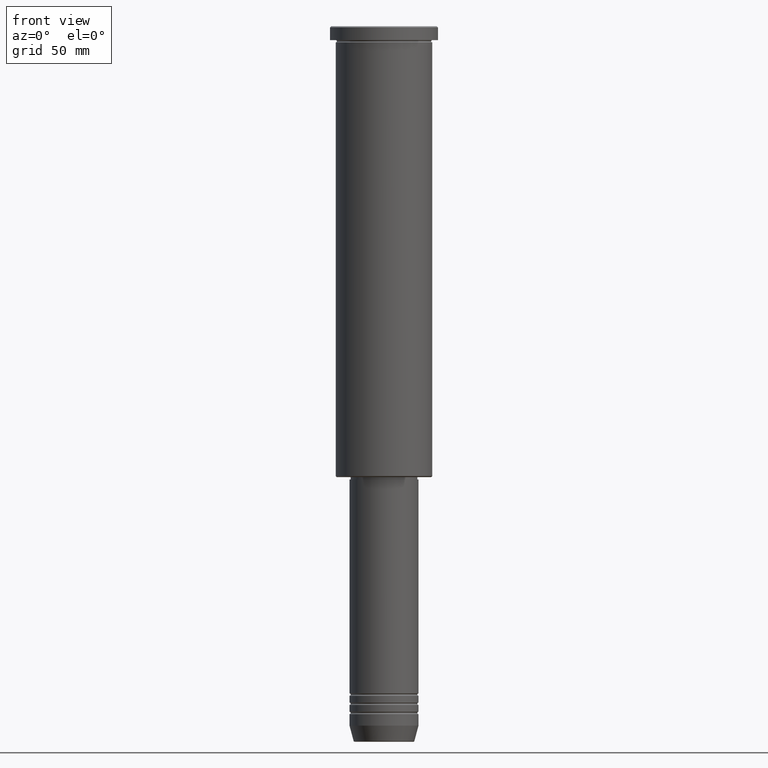
[diagram: clean part render]
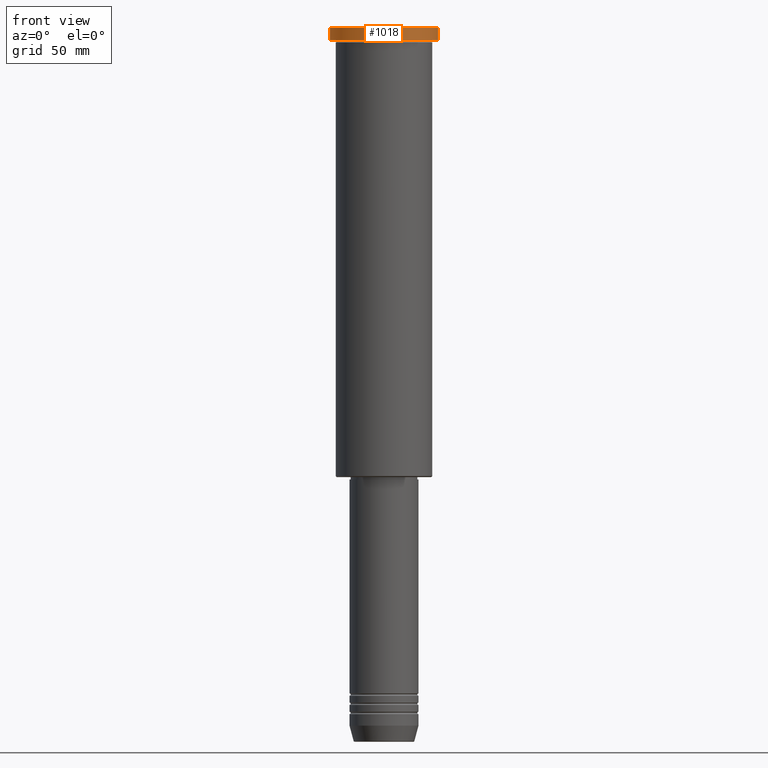
[diagram: same view with one face highlighted and labeled with its STEP entity id]
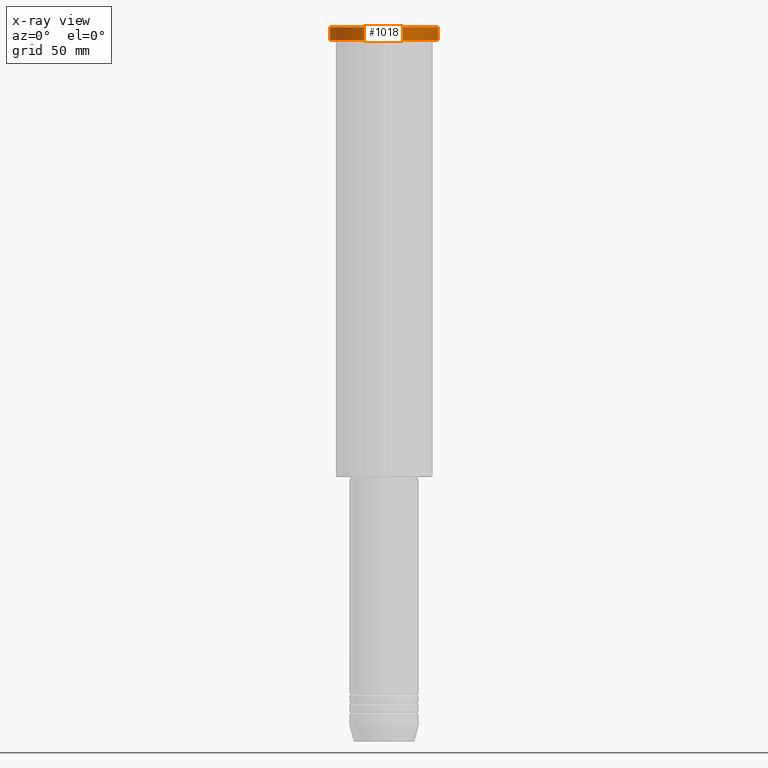
[diagram: x-ray of the same camera — body ghosted, the highlighted face saturated]
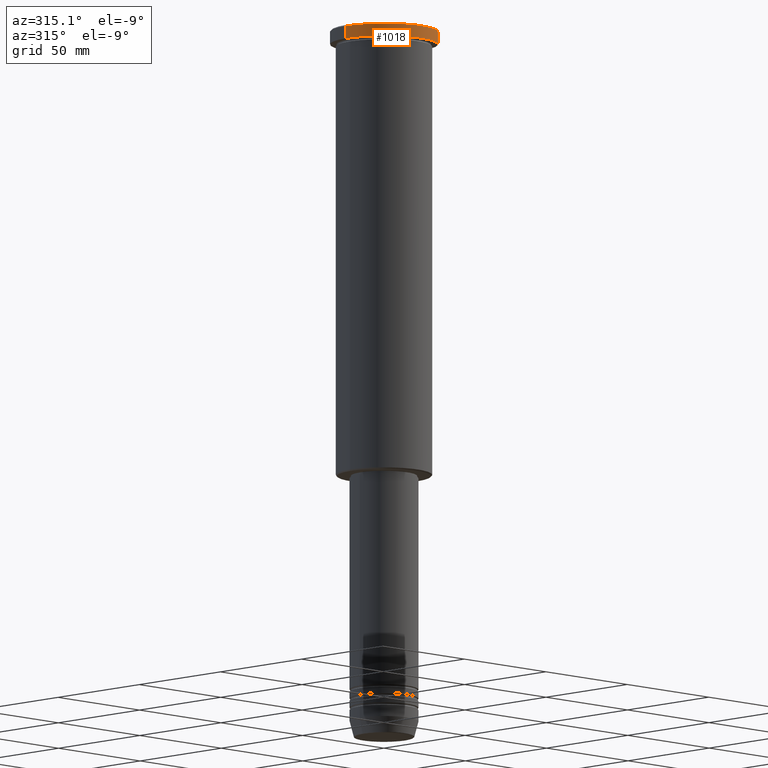
[diagram: same view with one face highlighted and labeled with its STEP entity id]
A machine part, front view. The second image highlights one B-rep face of the part: STEP entity #1018.
The next image is the same camera in x-ray: the body ghosted, the highlighted face saturated — about 0% of this face is hidden behind the body in this view.
A second angle (auxiliary view) of the same face is appended — the face is thin or edge-on in the first view.
In plain terms, the highlighted cylindrical surface (partial cylindrical patch) has radius 23.5 mm, axis along (-0, -0, 1).
Its self-contained STEP definition (entity closure, byte-faithful):
#9 = CARTESIAN_POINT ( 'NONE',  ( 23.50000000000000000, 0.000000000000000000, -5.999999999999993783 ) ) ;
#18 = VECTOR ( 'NONE', #574, 1000.000000000000000 ) ;
#26 = ORIENTED_EDGE ( 'NONE', *, *, #902, .T. ) ;
#27 = DIRECTION ( 'NONE',  ( -0.000000000000000000, -0.000000000000000000, 1.000000000000000000 ) ) ;
#206 = CARTESIAN_POINT ( 'NONE',  ( -23.50000000000000000, 2.877919977996280320E-15, -5.999999999999993783 ) ) ;
#227 = AXIS2_PLACEMENT_3D ( 'NONE', #492, #878, #1065 ) ;
#312 = VERTEX_POINT ( 'NONE', #9 ) ;
#334 = AXIS2_PLACEMENT_3D ( 'NONE', #568, #27, #389 ) ;
#363 = LINE ( 'NONE', #643, #18 ) ;
#382 = FACE_OUTER_BOUND ( 'NONE', #625, .T. ) ;
#387 = ORIENTED_EDGE ( 'NONE', *, *, #500, .F. ) ;
#389 = DIRECTION ( 'NONE',  ( 1.000000000000000000, 0.000000000000000000, 0.000000000000000000 ) ) ;
#405 = ORIENTED_EDGE ( 'NONE', *, *, #788, .T. ) ;
#489 = AXIS2_PLACEMENT_3D ( 'NONE', #621, #533, #1169 ) ;
#492 = CARTESIAN_POINT ( 'NONE',  ( 0.000000000000000000, 0.000000000000000000, -0.4999999999999726885 ) ) ;
#500 = EDGE_CURVE ( 'NONE', #1041, #1019, #363, .T. ) ;
#533 = DIRECTION ( 'NONE',  ( -0.000000000000000000, -0.000000000000000000, 1.000000000000000000 ) ) ;
#553 = CIRCLE ( 'NONE', #489, 23.50000000000000000 ) ;
#564 = CARTESIAN_POINT ( 'NONE',  ( 23.50000000000000000, 0.000000000000000000, -0.4999999999999726885 ) ) ;
#568 = CARTESIAN_POINT ( 'NONE',  ( 0.000000000000000000, 0.000000000000000000, 0.000000000000000000 ) ) ;
#574 = DIRECTION ( 'NONE',  ( -0.000000000000000000, -0.000000000000000000, 1.000000000000000000 ) ) ;
#621 = CARTESIAN_POINT ( 'NONE',  ( 0.000000000000000000, 0.000000000000000000, -5.999999999999993783 ) ) ;
#625 = EDGE_LOOP ( 'NONE', ( #387, #26, #787, #405 ) ) ;
#643 = CARTESIAN_POINT ( 'NONE',  ( -23.50000000000000000, 2.877919977996280320E-15, 0.000000000000000000 ) ) ;
#785 = LINE ( 'NONE', #968, #1067 ) ;
#787 = ORIENTED_EDGE ( 'NONE', *, *, #1173, .T. ) ;
#788 = EDGE_CURVE ( 'NONE', #955, #1019, #894, .T. ) ;
#833 = CARTESIAN_POINT ( 'NONE',  ( -23.50000000000000000, 2.877919977996280320E-15, -0.4999999999999726885 ) ) ;
#878 = DIRECTION ( 'NONE',  ( 0.000000000000000000, 0.000000000000000000, -1.000000000000000000 ) ) ;
#894 = CIRCLE ( 'NONE', #227, 23.50000000000000000 ) ;
#902 = EDGE_CURVE ( 'NONE', #1041, #312, #553, .T. ) ;
#955 = VERTEX_POINT ( 'NONE', #564 ) ;
#960 = DIRECTION ( 'NONE',  ( -0.000000000000000000, -0.000000000000000000, 1.000000000000000000 ) ) ;
#968 = CARTESIAN_POINT ( 'NONE',  ( 23.50000000000000000, 0.000000000000000000, 0.000000000000000000 ) ) ;
#1011 = CYLINDRICAL_SURFACE ( 'NONE', #334, 23.50000000000000000 ) ;
#1018 = ADVANCED_FACE ( 'NONE', ( #382 ), #1011, .T. ) ;
#1019 = VERTEX_POINT ( 'NONE', #833 ) ;
#1041 = VERTEX_POINT ( 'NONE', #206 ) ;
#1065 = DIRECTION ( 'NONE',  ( 1.000000000000000000, 0.000000000000000000, 0.000000000000000000 ) ) ;
#1067 = VECTOR ( 'NONE', #960, 1000.000000000000000 ) ;
#1169 = DIRECTION ( 'NONE',  ( 1.000000000000000000, 0.000000000000000000, 0.000000000000000000 ) ) ;
#1173 = EDGE_CURVE ( 'NONE', #312, #955, #785, .T. ) ;